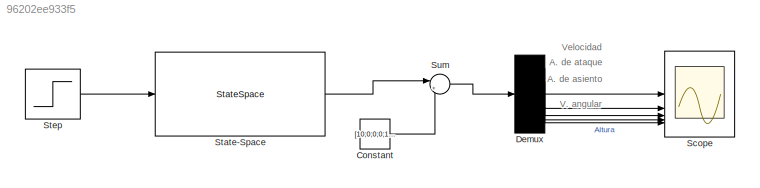
MODEL slx_96202ee933f5
KIND model
CONFIG AbsTol = auto
CONFIG EnableMultiTasking = off
CONFIG FixedStep = auto
CONFIG MaxStep = auto
CONFIG MinStep = auto
CONFIG RelTol = 1e-3
CONFIG SampleTimeConstraint = Unconstrained
CONFIG SolverName = VariableStepAuto
CONFIG StartTime = 0.0
CONFIG StopTime = 50
BLOCK [Constant] Constant
  Value = [10;0;0;0;1000]
BLOCK [Demux] Demux
  Outputs = 5
BLOCK [Scope] Scope
  Floating = off
  NumInputPorts = 5
  ScopeSpecificationString = Simulink.scopes.TimeScopeBlockCfg('CurrentConfiguration', extmgr.ConfigurationSet(extmgr.Configuration('Core','General UI',true),extmgr.Configuration('Core','Source UI',true),extmgr.Configuration('Sources','WiredSimulink',true),extmgr.Configuration('Visuals','Time Domain',true,'SerializedDisplays',{struct('MinYLimReal','3.63424','MaxYLimReal','11.93334','YLabelReal','','MinYLimMag','3.63424','MaxY...<+5012ch>
BLOCK [StateSpace] State-Space
  A = A
  B = B
  C = C
  D = D
  InitialCondition = [0,0,0,0,0]
BLOCK [Step] Step
  After = [1,0]
  SampleTime = 0
BLOCK [Sum] Sum
  Inputs = |++
ANNOTATION (root): A. de asiento
ANNOTATION (root): A. de ataque
ANNOTATION (root): V. angular
ANNOTATION (root): Velocidad
LINE Constant:1 -> Sum:2
LINE Demux:1 -> Scope:1
LINE Demux:2 -> Scope:2
LINE Demux:3 -> Scope:3
LINE Demux:4 -> Scope:4
LINE Demux:5 -> Scope:5
LINE State-Space:1 -> Sum:1
LINE Step:1 -> State-Space:1
LINE Sum:1 -> Demux:1
